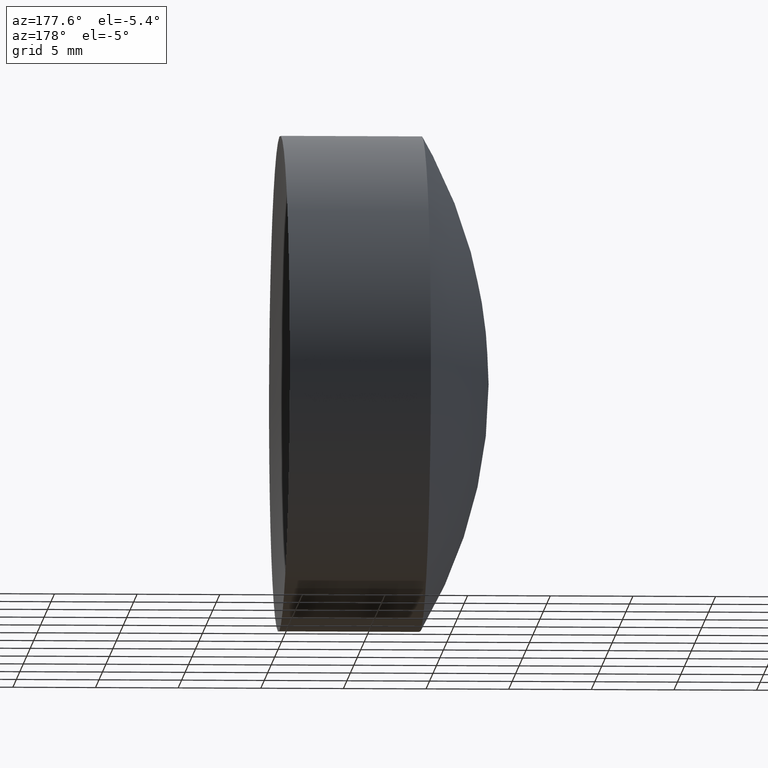
[diagram: clean part render]
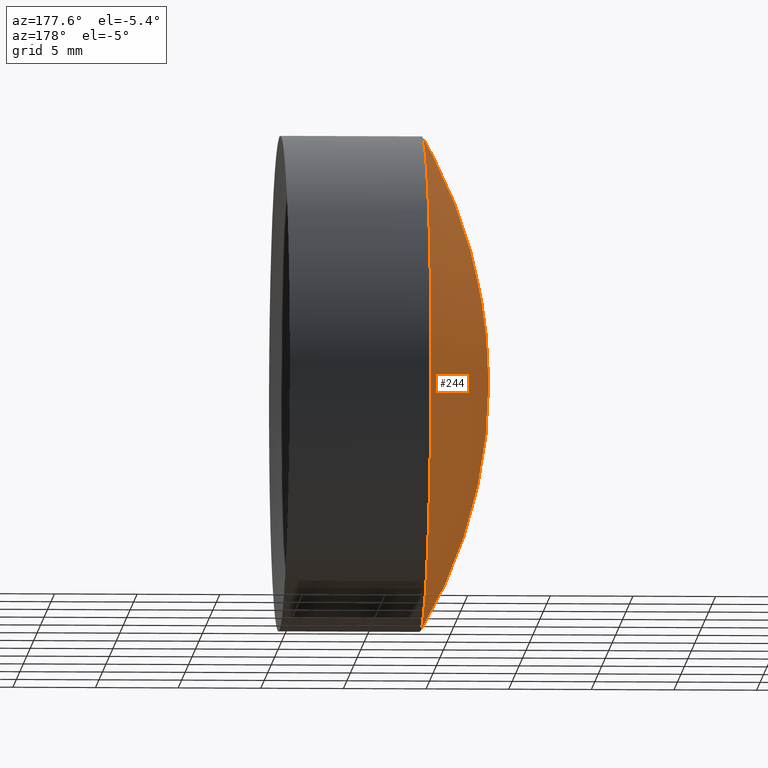
[diagram: same view with one face highlighted and labeled with its STEP entity id]
A machine part, auxiliary view. The second image highlights one B-rep face of the part: STEP entity #244.
In plain terms, the highlighted spherical surface has radius 29.38 mm.
Its self-contained STEP definition (entity closure, byte-faithful):
#13 = ORIENTED_EDGE ( 'NONE', *, *, #81, .T. ) ;
#34 = AXIS2_PLACEMENT_3D ( 'NONE', #73, #176, #180 ) ;
#53 = CIRCLE ( 'NONE', #342, 14.99999999999999600 ) ;
#56 = DIRECTION ( 'NONE',  ( 0.0000000000000000000, -1.000000000000000000, 0.0000000000000000000 ) ) ;
#57 = AXIS2_PLACEMENT_3D ( 'NONE', #132, #232, #277 ) ;
#59 = CARTESIAN_POINT ( 'NONE',  ( 96.59065489886367600, 0.0000000000000000000, 14.99999999999999300 ) ) ;
#73 = CARTESIAN_POINT ( 'NONE',  ( 121.8529667487320600, 0.0000000000000000000, -2.769782849418513800E-015 ) ) ;
#81 = EDGE_CURVE ( 'NONE', #179, #341, #53, .T. ) ;
#95 = ORIENTED_EDGE ( 'NONE', *, *, #279, .T. ) ;
#103 = EDGE_CURVE ( 'NONE', #179, #119, #268, .T. ) ;
#106 = DIRECTION ( 'NONE',  ( -1.000000000000000000, -0.0000000000000000000, -0.0000000000000000000 ) ) ;
#110 = CARTESIAN_POINT ( 'NONE',  ( 96.59065489886367600, 1.836970198721028800E-015, -14.99999999999999600 ) ) ;
#119 = VERTEX_POINT ( 'NONE', #214 ) ;
#132 = CARTESIAN_POINT ( 'NONE',  ( 121.8529667487320600, 0.0000000000000000000, -2.769782849418513800E-015 ) ) ;
#152 = ORIENTED_EDGE ( 'NONE', *, *, #103, .F. ) ;
#170 = DIRECTION ( 'NONE',  ( 0.0000000000000000000, 0.0000000000000000000, -1.000000000000000000 ) ) ;
#176 = DIRECTION ( 'NONE',  ( 0.0000000000000000000, 1.000000000000000000, 0.0000000000000000000 ) ) ;
#179 = VERTEX_POINT ( 'NONE', #59 ) ;
#180 = DIRECTION ( 'NONE',  ( 0.0000000000000000000, 0.0000000000000000000, 1.000000000000000000 ) ) ;
#200 = DIRECTION ( 'NONE',  ( 0.0000000000000000000, 0.0000000000000000000, 1.000000000000000000 ) ) ;
#214 = CARTESIAN_POINT ( 'NONE',  ( 92.47296674873204800, 0.0000000000000000000, -9.707767014710518100E-016 ) ) ;
#232 = DIRECTION ( 'NONE',  ( -0.0000000000000000000, 1.000000000000000000, 1.224646799147353200E-016 ) ) ;
#244 = ADVANCED_FACE ( 'NONE', ( #314 ), #329, .T. ) ;
#264 = CARTESIAN_POINT ( 'NONE',  ( 121.8529667487320600, 0.0000000000000000000, -2.769782849418513800E-015 ) ) ;
#268 = CIRCLE ( 'NONE', #295, 29.38000000000000300 ) ;
#274 = CIRCLE ( 'NONE', #57, 29.38000000000000300 ) ;
#277 = DIRECTION ( 'NONE',  ( 0.0000000000000000000, -1.224646799147353200E-016, 1.000000000000000000 ) ) ;
#279 = EDGE_CURVE ( 'NONE', #341, #119, #274, .T. ) ;
#295 = AXIS2_PLACEMENT_3D ( 'NONE', #264, #56, #170 ) ;
#314 = FACE_OUTER_BOUND ( 'NONE', #321, .T. ) ;
#315 = CARTESIAN_POINT ( 'NONE',  ( 96.59065489886367600, 0.0000000000000000000, 0.0000000000000000000 ) ) ;
#321 = EDGE_LOOP ( 'NONE', ( #13, #95, #152 ) ) ;
#329 = SPHERICAL_SURFACE ( 'NONE', #34, 29.38000000000000300 ) ;
#341 = VERTEX_POINT ( 'NONE', #110 ) ;
#342 = AXIS2_PLACEMENT_3D ( 'NONE', #315, #106, #200 ) ;